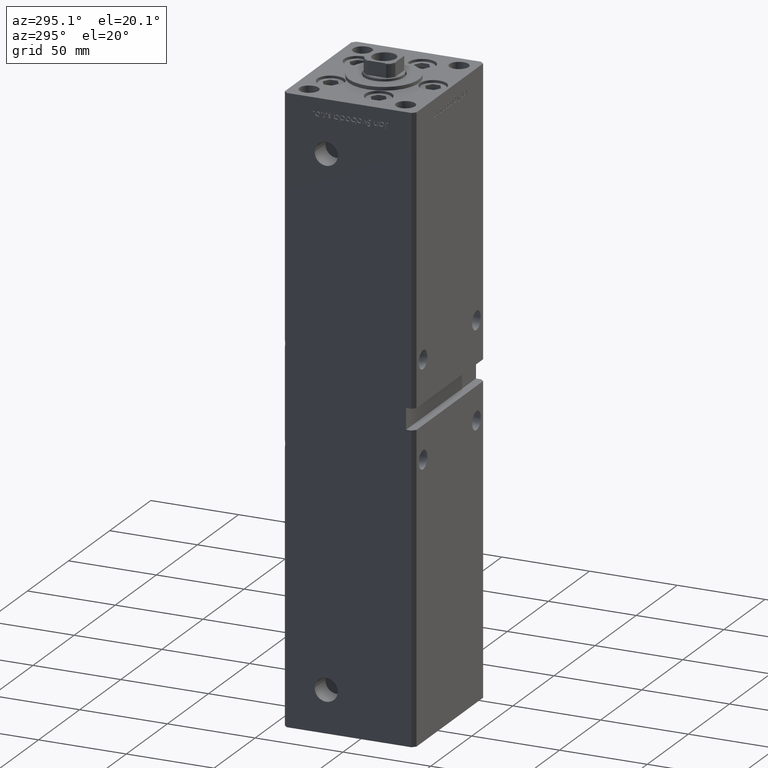
[diagram: clean part render]
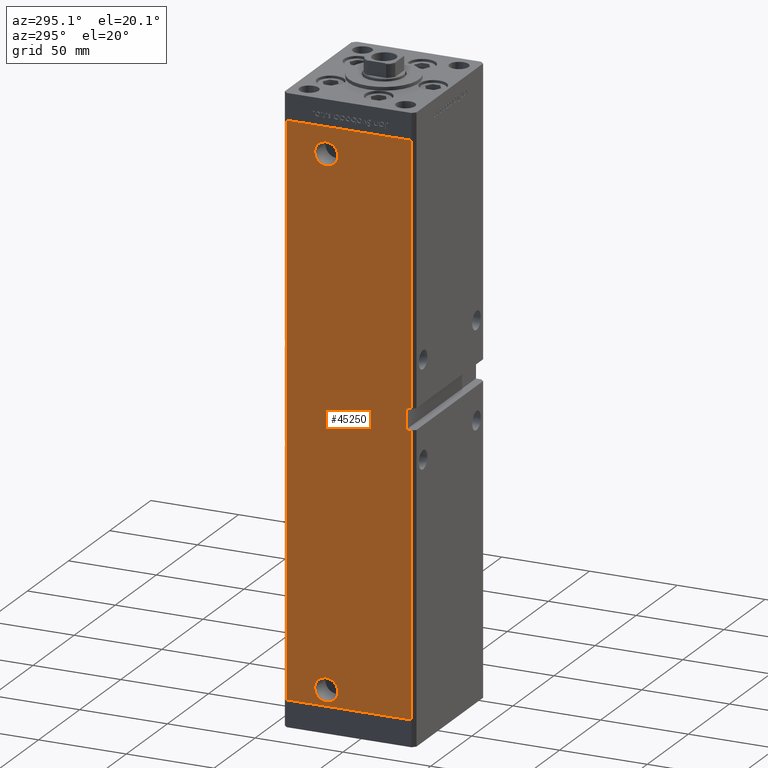
[diagram: same view with one face highlighted and labeled with its STEP entity id]
A machine part, auxiliary view. The second image highlights one B-rep face of the part: STEP entity #45250.
In plain terms, the highlighted planar face has unit normal (1, 0, 0).
Its self-contained STEP definition (entity closure, byte-faithful):
#93 = PLANE ( 'NONE',  #40800 ) ;
#274 = ORIENTED_EDGE ( 'NONE', *, *, #292, .F. ) ;
#292 = EDGE_CURVE ( 'NONE', #52150, #31727, #47887, .T. ) ;
#854 = ORIENTED_EDGE ( 'NONE', *, *, #32970, .F. ) ;
#894 = ORIENTED_EDGE ( 'NONE', *, *, #52381, .F. ) ;
#1327 = CARTESIAN_POINT ( 'NONE',  ( -42.49999999999998579, -35.50000000000000711, 318.5000000000000000 ) ) ;
#1354 = EDGE_CURVE ( 'NONE', #52797, #28362, #42043, .T. ) ;
#2100 = ORIENTED_EDGE ( 'NONE', *, *, #19201, .F. ) ;
#2311 = AXIS2_PLACEMENT_3D ( 'NONE', #15215, #47742, #7966 ) ;
#3065 = FACE_BOUND ( 'NONE', #25972, .T. ) ;
#3193 = CARTESIAN_POINT ( 'NONE',  ( -42.50000000000000000, 19.58000000000003737, 303.5000000000000000 ) ) ;
#4011 = CIRCLE ( 'NONE', #2311, 6.580000000000044480 ) ;
#4134 = FACE_BOUND ( 'NONE', #37011, .T. ) ;
#4323 = VERTEX_POINT ( 'NONE', #37853 ) ;
#4523 = CARTESIAN_POINT ( 'NONE',  ( -42.49999999999997868, -32.50000000000000711, 171.0000000000000568 ) ) ;
#4929 = AXIS2_PLACEMENT_3D ( 'NONE', #13031, #29668, #50905 ) ;
#6114 = DIRECTION ( 'NONE',  ( -0.000000000000000000, -1.000000000000000000, -0.000000000000000000 ) ) ;
#6923 = VECTOR ( 'NONE', #6114, 1000.000000000000000 ) ;
#7059 = DIRECTION ( 'NONE',  ( 0.000000000000000000, -1.000000000000000000, 0.000000000000000000 ) ) ;
#7225 = CARTESIAN_POINT ( 'NONE',  ( -42.50000000000000000, 19.57999999999999829, 9.000000000000007105 ) ) ;
#7966 = DIRECTION ( 'NONE',  ( 0.000000000000000000, -1.000000000000000000, 0.000000000000000000 ) ) ;
#8270 = CARTESIAN_POINT ( 'NONE',  ( -42.49999999999998579, -35.50000000000000711, 318.5000000000000000 ) ) ;
#8632 = DIRECTION ( 'NONE',  ( 3.909236002201255146E-16, -1.000000000000000000, 0.000000000000000000 ) ) ;
#10069 = VECTOR ( 'NONE', #8632, 1000.000000000000000 ) ;
#10559 = CARTESIAN_POINT ( 'NONE',  ( -42.50000000000000000, 12.99999999999999467, 9.000000000000007105 ) ) ;
#10914 = CIRCLE ( 'NONE', #4929, 6.580000000000044480 ) ;
#10935 = CARTESIAN_POINT ( 'NONE',  ( -42.49999999999998579, -32.50000000000000711, 159.0000000000000568 ) ) ;
#11060 = CARTESIAN_POINT ( 'NONE',  ( -42.49999999999997868, -32.50000000000000711, 171.0000000000000568 ) ) ;
#11095 = VECTOR ( 'NONE', #27451, 1000.000000000000000 ) ;
#11133 = DIRECTION ( 'NONE',  ( 3.909236002201255146E-16, -1.000000000000000000, 0.000000000000000000 ) ) ;
#11174 = ORIENTED_EDGE ( 'NONE', *, *, #13055, .F. ) ;
#11727 = EDGE_CURVE ( 'NONE', #52150, #39222, #13104, .T. ) ;
#12547 = ORIENTED_EDGE ( 'NONE', *, *, #50636, .F. ) ;
#13031 = CARTESIAN_POINT ( 'NONE',  ( -42.50000000000000000, 12.99999999999999467, 303.5000000000000000 ) ) ;
#13055 = EDGE_CURVE ( 'NONE', #14327, #15240, #10914, .T. ) ;
#13104 = LINE ( 'NONE', #4523, #21855 ) ;
#13211 = LINE ( 'NONE', #41685, #10069 ) ;
#13743 = ORIENTED_EDGE ( 'NONE', *, *, #38471, .F. ) ;
#14327 = VERTEX_POINT ( 'NONE', #48664 ) ;
#15215 = CARTESIAN_POINT ( 'NONE',  ( -42.50000000000000000, 12.99999999999999467, 303.5000000000000000 ) ) ;
#15240 = VERTEX_POINT ( 'NONE', #3193 ) ;
#15921 = EDGE_CURVE ( 'NONE', #15240, #14327, #4011, .T. ) ;
#16607 = DIRECTION ( 'NONE',  ( -0.000000000000000000, -0.000000000000000000, -1.000000000000000000 ) ) ;
#16967 = EDGE_CURVE ( 'NONE', #4323, #18034, #44726, .T. ) ;
#17160 = CARTESIAN_POINT ( 'NONE',  ( -42.50000000000000000, 12.99999999999999467, 9.000000000000007105 ) ) ;
#17348 = VECTOR ( 'NONE', #16607, 1000.000000000000000 ) ;
#18034 = VERTEX_POINT ( 'NONE', #30696 ) ;
#19201 = EDGE_CURVE ( 'NONE', #40367, #24562, #13211, .T. ) ;
#20244 = DIRECTION ( 'NONE',  ( 1.000000000000000000, 3.909236002201255146E-16, -0.000000000000000000 ) ) ;
#20660 = DIRECTION ( 'NONE',  ( -1.000000000000000000, -2.275047181608927644E-16, 0.000000000000000000 ) ) ;
#21225 = VECTOR ( 'NONE', #11133, 1000.000000000000000 ) ;
#21855 = VECTOR ( 'NONE', #49125, 1000.000000000000000 ) ;
#22431 = VECTOR ( 'NONE', #30316, 1000.000000000000000 ) ;
#22632 = CARTESIAN_POINT ( 'NONE',  ( -42.50000000000001421, 35.50000000000000711, 318.5000000000000000 ) ) ;
#23462 = FACE_OUTER_BOUND ( 'NONE', #36894, .T. ) ;
#24562 = VERTEX_POINT ( 'NONE', #41549 ) ;
#25748 = AXIS2_PLACEMENT_3D ( 'NONE', #10559, #36045, #7059 ) ;
#25972 = EDGE_LOOP ( 'NONE', ( #35670, #13743 ) ) ;
#27451 = DIRECTION ( 'NONE',  ( -1.156482317317870344E-15, 0.000000000000000000, -1.000000000000000000 ) ) ;
#28362 = VERTEX_POINT ( 'NONE', #7225 ) ;
#29513 = DIRECTION ( 'NONE',  ( 0.000000000000000000, -1.000000000000000000, 0.000000000000000000 ) ) ;
#29544 = CARTESIAN_POINT ( 'NONE',  ( -42.49999999999997868, -32.50000000000000711, 171.0000000000000568 ) ) ;
#29668 = DIRECTION ( 'NONE',  ( -1.000000000000000000, -2.275047181608927644E-16, 0.000000000000000000 ) ) ;
#30270 = AXIS2_PLACEMENT_3D ( 'NONE', #17160, #20660, #29513 ) ;
#30316 = DIRECTION ( 'NONE',  ( -0.000000000000000000, -0.000000000000000000, -1.000000000000000000 ) ) ;
#30696 = CARTESIAN_POINT ( 'NONE',  ( -42.49999999999998579, -35.50000000000000711, 0.000000000000000000 ) ) ;
#31148 = CARTESIAN_POINT ( 'NONE',  ( -42.49999999999998579, -35.49999999999982236, 159.0000000000000568 ) ) ;
#31727 = VERTEX_POINT ( 'NONE', #38090 ) ;
#32059 = DIRECTION ( 'NONE',  ( -3.909236002201255146E-16, 1.000000000000000000, 0.000000000000000000 ) ) ;
#32970 = EDGE_CURVE ( 'NONE', #31727, #39148, #39411, .T. ) ;
#34335 = LINE ( 'NONE', #1327, #22431 ) ;
#35670 = ORIENTED_EDGE ( 'NONE', *, *, #1354, .F. ) ;
#36045 = DIRECTION ( 'NONE',  ( -1.000000000000000000, -2.275047181608927644E-16, 0.000000000000000000 ) ) ;
#36777 = CARTESIAN_POINT ( 'NONE',  ( -42.49999999999997868, -35.50000000000001421, 171.0000000000000568 ) ) ;
#36894 = EDGE_LOOP ( 'NONE', ( #12547, #854, #274, #49683, #894, #2100, #51009, #47131 ) ) ;
#37011 = EDGE_LOOP ( 'NONE', ( #11174, #39306 ) ) ;
#37364 = CARTESIAN_POINT ( 'NONE',  ( -42.50000000000001421, 35.50000000000000711, 318.5000000000000000 ) ) ;
#37853 = CARTESIAN_POINT ( 'NONE',  ( -42.50000000000001421, 35.50000000000000711, 0.000000000000000000 ) ) ;
#38090 = CARTESIAN_POINT ( 'NONE',  ( -42.49999999999998579, -32.50000000000000711, 159.0000000000000568 ) ) ;
#38471 = EDGE_CURVE ( 'NONE', #28362, #52797, #46611, .T. ) ;
#39148 = VERTEX_POINT ( 'NONE', #31148 ) ;
#39222 = VERTEX_POINT ( 'NONE', #36777 ) ;
#39306 = ORIENTED_EDGE ( 'NONE', *, *, #15921, .F. ) ;
#39411 = LINE ( 'NONE', #10935, #6923 ) ;
#39805 = LINE ( 'NONE', #22632, #41616 ) ;
#40367 = VERTEX_POINT ( 'NONE', #37364 ) ;
#40800 = AXIS2_PLACEMENT_3D ( 'NONE', #49000, #20244, #32059 ) ;
#41549 = CARTESIAN_POINT ( 'NONE',  ( -42.49999999999998579, -35.50000000000000711, 318.5000000000000000 ) ) ;
#41616 = VECTOR ( 'NONE', #47092, 1000.000000000000000 ) ;
#41685 = CARTESIAN_POINT ( 'NONE',  ( -42.50000000000001421, 35.50000000000000711, 318.5000000000000000 ) ) ;
#42043 = CIRCLE ( 'NONE', #25748, 6.580000000000002736 ) ;
#42433 = EDGE_CURVE ( 'NONE', #40367, #4323, #39805, .T. ) ;
#44282 = LINE ( 'NONE', #8270, #17348 ) ;
#44726 = LINE ( 'NONE', #52533, #21225 ) ;
#45250 = ADVANCED_FACE ( 'NONE', ( #23462, #3065, #4134 ), #93, .F. ) ;
#46611 = CIRCLE ( 'NONE', #30270, 6.580000000000002736 ) ;
#47092 = DIRECTION ( 'NONE',  ( -0.000000000000000000, -0.000000000000000000, -1.000000000000000000 ) ) ;
#47131 = ORIENTED_EDGE ( 'NONE', *, *, #16967, .T. ) ;
#47742 = DIRECTION ( 'NONE',  ( -1.000000000000000000, -2.275047181608927644E-16, 0.000000000000000000 ) ) ;
#47887 = LINE ( 'NONE', #11060, #11095 ) ;
#48664 = CARTESIAN_POINT ( 'NONE',  ( -42.50000000000000000, 6.419999999999950191, 303.5000000000000000 ) ) ;
#49000 = CARTESIAN_POINT ( 'NONE',  ( -42.50000000000001421, 35.50000000000000711, 318.5000000000000000 ) ) ;
#49125 = DIRECTION ( 'NONE',  ( -0.000000000000000000, -1.000000000000000000, -0.000000000000000000 ) ) ;
#49683 = ORIENTED_EDGE ( 'NONE', *, *, #11727, .T. ) ;
#50636 = EDGE_CURVE ( 'NONE', #39148, #18034, #34335, .T. ) ;
#50905 = DIRECTION ( 'NONE',  ( 0.000000000000000000, -1.000000000000000000, 0.000000000000000000 ) ) ;
#51009 = ORIENTED_EDGE ( 'NONE', *, *, #42433, .T. ) ;
#51895 = CARTESIAN_POINT ( 'NONE',  ( -42.50000000000000000, 6.419999999999991935, 9.000000000000007105 ) ) ;
#52150 = VERTEX_POINT ( 'NONE', #29544 ) ;
#52381 = EDGE_CURVE ( 'NONE', #24562, #39222, #44282, .T. ) ;
#52533 = CARTESIAN_POINT ( 'NONE',  ( -42.50000000000001421, 35.50000000000000711, 0.000000000000000000 ) ) ;
#52797 = VERTEX_POINT ( 'NONE', #51895 ) ;